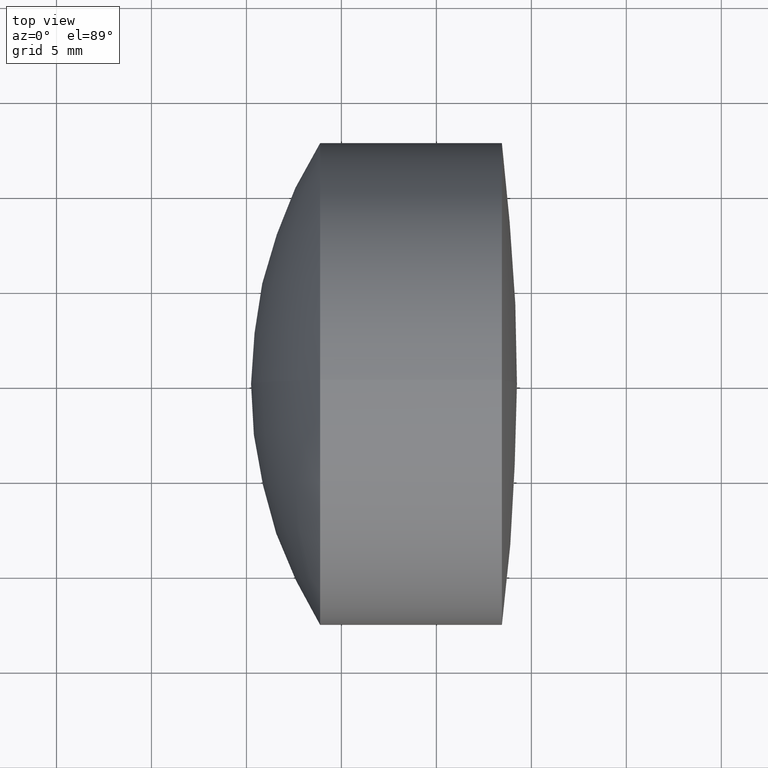
[diagram: clean part render]
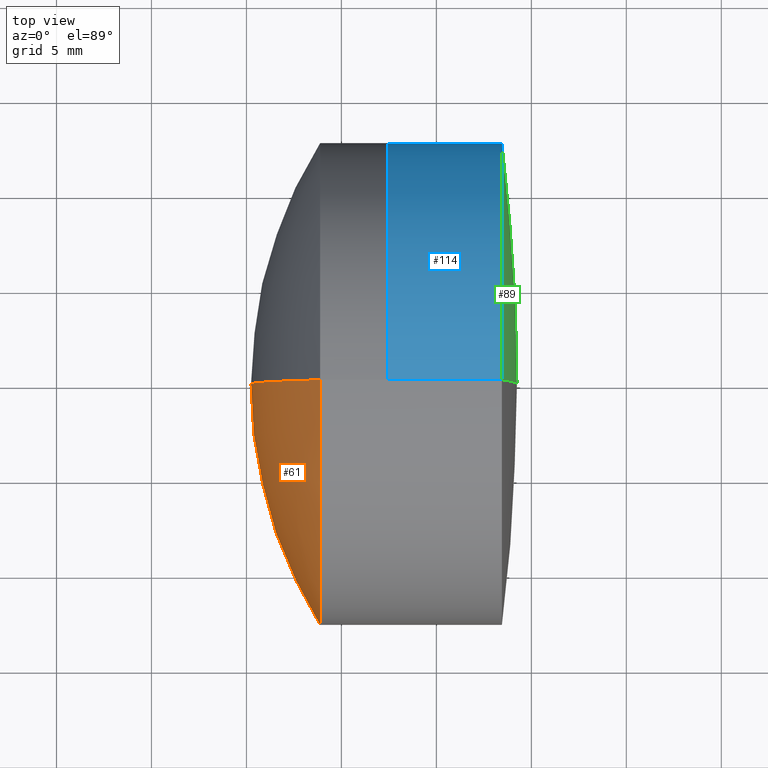
[diagram: same view with three faces highlighted in distinct colors, each labeled with its STEP entity id]
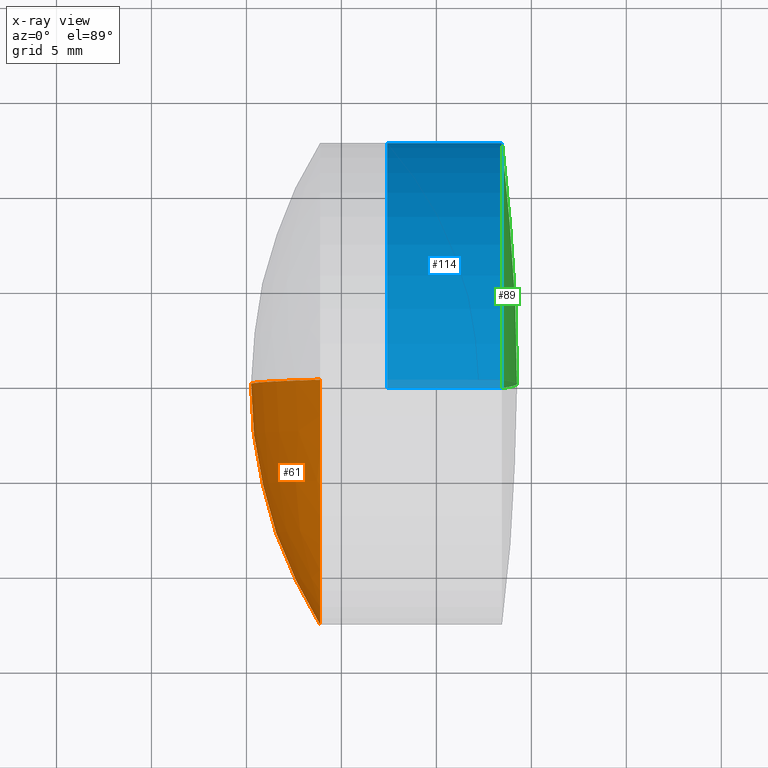
[diagram: x-ray of the same camera — body ghosted, the three highlighted faces saturated]
A machine part, top view with three faces highlighted in distinct colors.
The next image is the same camera in x-ray (body ghosted, the three faces saturated) — at least one of them is partly hidden behind the body in this view.
Their STEP definitions:

[orange] entity #61 — the highlighted spherical surface has radius 24 mm.
#12 = CIRCLE ( 'NONE', #179, 23.99999999999999600 ) ;
#26 = ORIENTED_EDGE ( 'NONE', *, *, #137, .F. ) ;
#29 = CARTESIAN_POINT ( 'NONE',  ( 215.2421632578001700, 0.0000000000000000000, 1.252735716401787200E-015 ) ) ;
#33 = CIRCLE ( 'NONE', #93, 23.99999999999999600 ) ;
#46 = AXIS2_PLACEMENT_3D ( 'NONE', #242, #49, #217 ) ;
#49 = DIRECTION ( 'NONE',  ( -1.000000000000000000, -0.0000000000000000000, -0.0000000000000000000 ) ) ;
#61 = ADVANCED_FACE ( 'NONE', ( #99 ), #218, .T. ) ;
#69 = EDGE_CURVE ( 'NONE', #190, #128, #163, .T. ) ;
#78 = CARTESIAN_POINT ( 'NONE',  ( 218.8777334842955900, 0.0000000000000000000, 12.69999999999999900 ) ) ;
#80 = DIRECTION ( 'NONE',  ( 0.0000000000000000000, 0.0000000000000000000, -1.000000000000000000 ) ) ;
#91 = EDGE_CURVE ( 'NONE', #128, #229, #33, .T. ) ;
#93 = AXIS2_PLACEMENT_3D ( 'NONE', #105, #268, #80 ) ;
#99 = FACE_OUTER_BOUND ( 'NONE', #310, .T. ) ;
#105 = CARTESIAN_POINT ( 'NONE',  ( 239.2421632578001700, 0.0000000000000000000, -2.168404425750365600E-016 ) ) ;
#128 = VERTEX_POINT ( 'NONE', #78 ) ;
#137 = EDGE_CURVE ( 'NONE', #190, #229, #12, .T. ) ;
#151 = CARTESIAN_POINT ( 'NONE',  ( 218.8777334842955900, 1.555301434917138400E-015, -12.69999999999999900 ) ) ;
#152 = DIRECTION ( 'NONE',  ( -0.0000000000000000000, 1.000000000000000000, 1.224646799147353200E-016 ) ) ;
#161 = DIRECTION ( 'NONE',  ( 0.0000000000000000000, 0.0000000000000000000, 1.000000000000000000 ) ) ;
#163 = CIRCLE ( 'NONE', #46, 12.69999999999999900 ) ;
#179 = AXIS2_PLACEMENT_3D ( 'NONE', #335, #152, #312 ) ;
#190 = VERTEX_POINT ( 'NONE', #151 ) ;
#217 = DIRECTION ( 'NONE',  ( 0.0000000000000000000, 0.0000000000000000000, 1.000000000000000000 ) ) ;
#218 = SPHERICAL_SURFACE ( 'NONE', #238, 23.99999999999999600 ) ;
#222 = ORIENTED_EDGE ( 'NONE', *, *, #91, .T. ) ;
#229 = VERTEX_POINT ( 'NONE', #29 ) ;
#238 = AXIS2_PLACEMENT_3D ( 'NONE', #317, #270, #161 ) ;
#242 = CARTESIAN_POINT ( 'NONE',  ( 218.8777334842955900, 0.0000000000000000000, 0.0000000000000000000 ) ) ;
#268 = DIRECTION ( 'NONE',  ( 0.0000000000000000000, -1.000000000000000000, 0.0000000000000000000 ) ) ;
#270 = DIRECTION ( 'NONE',  ( 0.0000000000000000000, 1.000000000000000000, 0.0000000000000000000 ) ) ;
#310 = EDGE_LOOP ( 'NONE', ( #26, #321, #222 ) ) ;
#312 = DIRECTION ( 'NONE',  ( 0.0000000000000000000, -1.224646799147353200E-016, 1.000000000000000000 ) ) ;
#317 = CARTESIAN_POINT ( 'NONE',  ( 239.2421632578001700, 0.0000000000000000000, -2.168404425750365600E-016 ) ) ;
#321 = ORIENTED_EDGE ( 'NONE', *, *, #69, .T. ) ;
#335 = CARTESIAN_POINT ( 'NONE',  ( 239.2421632578001700, 0.0000000000000000000, -2.168404425750365600E-016 ) ) ;

[blue] entity #114 — the highlighted cylindrical surface (partial cylindrical patch) has radius 12.7 mm, axis along (-1, -0, -0).
#17 = DIRECTION ( 'NONE',  ( -1.000000000000000000, -0.0000000000000000000, -0.0000000000000000000 ) ) ;
#25 = DIRECTION ( 'NONE',  ( -1.000000000000000000, -0.0000000000000000000, -0.0000000000000000000 ) ) ;
#35 = AXIS2_PLACEMENT_3D ( 'NONE', #126, #48, #158 ) ;
#41 = AXIS2_PLACEMENT_3D ( 'NONE', #264, #237, #74 ) ;
#43 = ORIENTED_EDGE ( 'NONE', *, *, #122, .T. ) ;
#48 = DIRECTION ( 'NONE',  ( -1.000000000000000000, -0.0000000000000000000, -0.0000000000000000000 ) ) ;
#53 = CARTESIAN_POINT ( 'NONE',  ( 228.4492212547630700, 1.555301434917136500E-015, -12.69999999999998200 ) ) ;
#54 = AXIS2_PLACEMENT_3D ( 'NONE', #298, #25, #251 ) ;
#55 = ORIENTED_EDGE ( 'NONE', *, *, #183, .T. ) ;
#70 = VERTEX_POINT ( 'NONE', #269 ) ;
#74 = DIRECTION ( 'NONE',  ( 0.0000000000000000000, 0.0000000000000000000, 1.000000000000000000 ) ) ;
#114 = ADVANCED_FACE ( 'NONE', ( #241 ), #328, .T. ) ;
#122 = EDGE_CURVE ( 'NONE', #284, #195, #193, .T. ) ;
#126 = CARTESIAN_POINT ( 'NONE',  ( -0.5519199926577972300, 0.0000000000000000000, 0.0000000000000000000 ) ) ;
#140 = LINE ( 'NONE', #324, #167 ) ;
#158 = DIRECTION ( 'NONE',  ( 0.0000000000000000000, 0.0000000000000000000, 1.000000000000000000 ) ) ;
#167 = VECTOR ( 'NONE', #346, 1000.000000000000000 ) ;
#177 = VERTEX_POINT ( 'NONE', #333 ) ;
#183 = EDGE_CURVE ( 'NONE', #177, #284, #227, .T. ) ;
#193 = LINE ( 'NONE', #315, #341 ) ;
#195 = VERTEX_POINT ( 'NONE', #320 ) ;
#208 = EDGE_CURVE ( 'NONE', #177, #70, #140, .T. ) ;
#216 = CIRCLE ( 'NONE', #41, 12.69999999999998200 ) ;
#227 = CIRCLE ( 'NONE', #54, 12.69999999999998200 ) ;
#237 = DIRECTION ( 'NONE',  ( -1.000000000000000000, -0.0000000000000000000, -0.0000000000000000000 ) ) ;
#241 = FACE_OUTER_BOUND ( 'NONE', #244, .T. ) ;
#244 = EDGE_LOOP ( 'NONE', ( #55, #43, #257, #292 ) ) ;
#251 = DIRECTION ( 'NONE',  ( 0.0000000000000000000, 0.0000000000000000000, 1.000000000000000000 ) ) ;
#257 = ORIENTED_EDGE ( 'NONE', *, *, #329, .F. ) ;
#264 = CARTESIAN_POINT ( 'NONE',  ( 222.4082068579018300, 0.0000000000000000000, 0.0000000000000000000 ) ) ;
#269 = CARTESIAN_POINT ( 'NONE',  ( 222.4082068579018300, 0.0000000000000000000, 12.69999999999998200 ) ) ;
#284 = VERTEX_POINT ( 'NONE', #53 ) ;
#292 = ORIENTED_EDGE ( 'NONE', *, *, #208, .F. ) ;
#298 = CARTESIAN_POINT ( 'NONE',  ( 228.4492212547630700, 0.0000000000000000000, 0.0000000000000000000 ) ) ;
#315 = CARTESIAN_POINT ( 'NONE',  ( -0.5519199926577972300, 1.555301434917136500E-015, -12.69999999999998200 ) ) ;
#320 = CARTESIAN_POINT ( 'NONE',  ( 222.4082068579018300, 1.555301434917136700E-015, -12.69999999999998200 ) ) ;
#324 = CARTESIAN_POINT ( 'NONE',  ( -0.5519199926577972300, 0.0000000000000000000, 12.69999999999998200 ) ) ;
#328 = CYLINDRICAL_SURFACE ( 'NONE', #35, 12.69999999999998200 ) ;
#329 = EDGE_CURVE ( 'NONE', #70, #195, #216, .T. ) ;
#333 = CARTESIAN_POINT ( 'NONE',  ( 228.4492212547630700, 0.0000000000000000000, 12.69999999999998200 ) ) ;
#341 = VECTOR ( 'NONE', #17, 1000.000000000000000 ) ;
#346 = DIRECTION ( 'NONE',  ( -1.000000000000000000, -0.0000000000000000000, -0.0000000000000000000 ) ) ;

[green] entity #89 — the highlighted spherical surface has radius 102.1 mm.
#11 = EDGE_CURVE ( 'NONE', #22, #177, #236, .T. ) ;
#18 = CARTESIAN_POINT ( 'NONE',  ( 127.1421632578002100, 0.0000000000000000000, 0.0000000000000000000 ) ) ;
#21 = CARTESIAN_POINT ( 'NONE',  ( 229.2421632578002000, 0.0000000000000000000, 6.251821909647237500E-015 ) ) ;
#22 = VERTEX_POINT ( 'NONE', #21 ) ;
#25 = DIRECTION ( 'NONE',  ( -1.000000000000000000, -0.0000000000000000000, -0.0000000000000000000 ) ) ;
#53 = CARTESIAN_POINT ( 'NONE',  ( 228.4492212547630700, 1.555301434917136500E-015, -12.69999999999998200 ) ) ;
#54 = AXIS2_PLACEMENT_3D ( 'NONE', #298, #25, #251 ) ;
#89 = ADVANCED_FACE ( 'NONE', ( #343 ), #159, .T. ) ;
#106 = ORIENTED_EDGE ( 'NONE', *, *, #11, .F. ) ;
#108 = EDGE_CURVE ( 'NONE', #22, #284, #311, .T. ) ;
#123 = AXIS2_PLACEMENT_3D ( 'NONE', #18, #340, #187 ) ;
#129 = DIRECTION ( 'NONE',  ( 0.0000000000000000000, -1.000000000000000000, 0.0000000000000000000 ) ) ;
#143 = AXIS2_PLACEMENT_3D ( 'NONE', #186, #337, #155 ) ;
#149 = ORIENTED_EDGE ( 'NONE', *, *, #108, .T. ) ;
#155 = DIRECTION ( 'NONE',  ( 0.0000000000000000000, -1.224646799147353200E-016, 1.000000000000000000 ) ) ;
#159 = SPHERICAL_SURFACE ( 'NONE', #123, 102.0999999999999900 ) ;
#165 = AXIS2_PLACEMENT_3D ( 'NONE', #319, #129, #296 ) ;
#177 = VERTEX_POINT ( 'NONE', #333 ) ;
#183 = EDGE_CURVE ( 'NONE', #177, #284, #227, .T. ) ;
#186 = CARTESIAN_POINT ( 'NONE',  ( 127.1421632578002100, 0.0000000000000000000, 0.0000000000000000000 ) ) ;
#187 = DIRECTION ( 'NONE',  ( 0.0000000000000000000, 0.0000000000000000000, 1.000000000000000000 ) ) ;
#227 = CIRCLE ( 'NONE', #54, 12.69999999999998200 ) ;
#236 = CIRCLE ( 'NONE', #165, 102.0999999999999900 ) ;
#248 = EDGE_LOOP ( 'NONE', ( #106, #149, #326 ) ) ;
#251 = DIRECTION ( 'NONE',  ( 0.0000000000000000000, 0.0000000000000000000, 1.000000000000000000 ) ) ;
#284 = VERTEX_POINT ( 'NONE', #53 ) ;
#296 = DIRECTION ( 'NONE',  ( 0.0000000000000000000, 0.0000000000000000000, -1.000000000000000000 ) ) ;
#298 = CARTESIAN_POINT ( 'NONE',  ( 228.4492212547630700, 0.0000000000000000000, 0.0000000000000000000 ) ) ;
#311 = CIRCLE ( 'NONE', #143, 102.0999999999999900 ) ;
#319 = CARTESIAN_POINT ( 'NONE',  ( 127.1421632578002100, 0.0000000000000000000, 0.0000000000000000000 ) ) ;
#326 = ORIENTED_EDGE ( 'NONE', *, *, #183, .F. ) ;
#333 = CARTESIAN_POINT ( 'NONE',  ( 228.4492212547630700, 0.0000000000000000000, 12.69999999999998200 ) ) ;
#337 = DIRECTION ( 'NONE',  ( -0.0000000000000000000, 1.000000000000000000, 1.224646799147353200E-016 ) ) ;
#340 = DIRECTION ( 'NONE',  ( 0.0000000000000000000, 1.000000000000000000, 0.0000000000000000000 ) ) ;
#343 = FACE_OUTER_BOUND ( 'NONE', #248, .T. ) ;